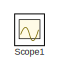
[diagram: root canvas - part 1/2, top left region]
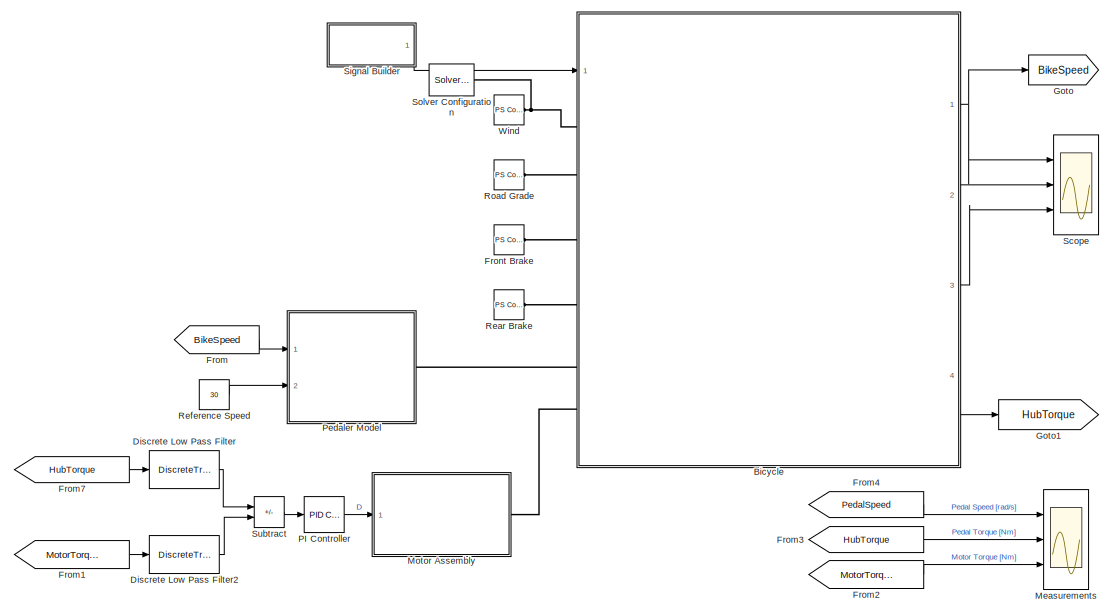
[diagram: root canvas - part 2/2, full width, bottom band]
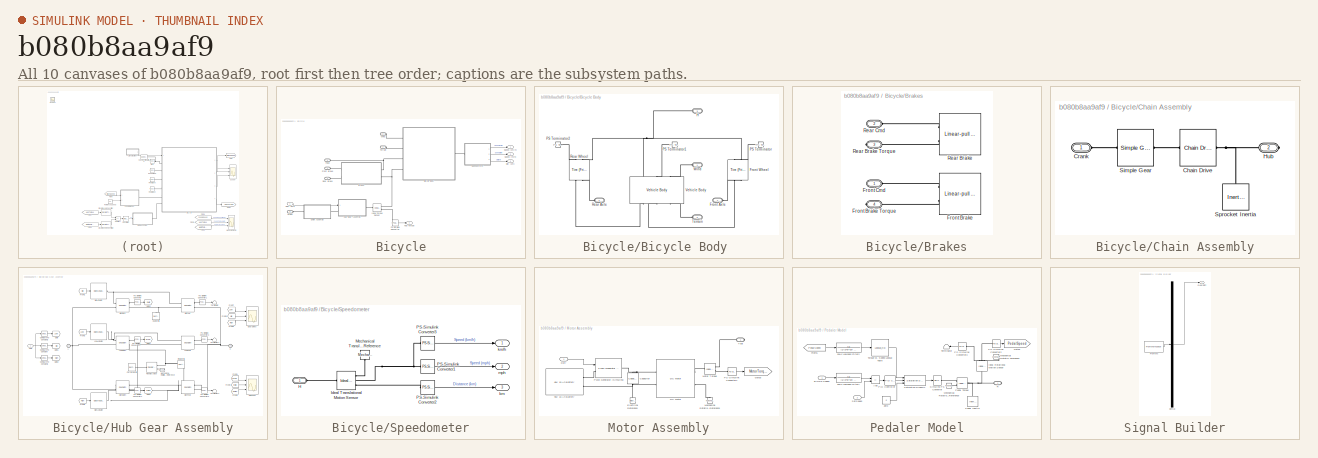
[diagram: thumbnail index - all 10 canvases of the model, root first then tree order]
MODEL slx_b080b8aa9af9
KIND model
CONFIG AbsTol = 1e-3
CONFIG EnableMultiTasking = on
CONFIG FixedStep = 1/500
CONFIG MaxStep = auto
CONFIG MinStep = auto
CONFIG PreLoadFcn = xh = 2*pi/60*[0:10:200];     % rpm to rad/s\nyh = 50*(1-exp(-(max(xh)-xh)/2));\nload bicycle_params
CONFIG RelTol = auto
CONFIG SampleTimeConstraint = Unconstrained
CONFIG SolverName = daessc
CONFIG StartTime = 0.0
CONFIG StopTime = 60
BLOCK [SubSystem] Bicycle
  Ports = [1, 4, 0, 0, 0, 6]
  RequestExecContextInheritance = off
BLOCK [SubSystem] Bicycle/Bicycle Body 
  Ports = [0, 0, 0, 0, 0, 4, 1]
  RequestExecContextInheritance = off
BLOCK [PMIOPort] Bicycle/Bicycle Body /Front Axle
  Port = 4
  Side = Left
BLOCK [Reference] Bicycle/Bicycle Body /Front Wheel  REF=sdl_lib/Tires & Vehicles/Tire (Friction
Parameterized)
  NameLocation = right
  Ports = [0, 0, 0, 0, 0, 2, 2]
  SourceBlock = sdl_lib/Tires & Vehicles/Tire (Friction\nParameterized)
  SourceProductBaseCode = LD
  SourceType = Tire (Friction\nParameterized)
BLOCK [PMIOPort] Bicycle/Bicycle Body /H
  Port = 3
  Side = Right
BLOCK [Reference] Bicycle/Bicycle Body /PS Terminator  REF=fl_lib/Physical Signals/Sinks/PS Terminator
  Ports = [0, 0, 0, 0, 0, 1]
  SourceBlock = fl_lib/Physical Signals/Sinks/PS Terminator
  SourceProductBaseCode = SS
  SourceType = PS Terminator
BLOCK [Reference] Bicycle/Bicycle Body /PS Terminator1  REF=fl_lib/Physical Signals/Sinks/PS Terminator
  Ports = [0, 0, 0, 0, 0, 1]
  SourceBlock = fl_lib/Physical Signals/Sinks/PS Terminator
  SourceProductBaseCode = SS
  SourceType = PS Terminator
BLOCK [Reference] Bicycle/Bicycle Body /PS Terminator2  REF=fl_lib/Physical Signals/Sinks/PS Terminator
  Ports = [0, 0, 0, 0, 0, 1]
  SourceBlock = fl_lib/Physical Signals/Sinks/PS Terminator
  SourceProductBaseCode = SS
  SourceType = PS Terminator
BLOCK [PMIOPort] Bicycle/Bicycle Body /Rear Axle
  Port = 5
  Side = Left
BLOCK [Reference] Bicycle/Bicycle Body /Rear Wheel  REF=sdl_lib/Tires & Vehicles/Tire (Friction
Parameterized)
  NameLocation = right
  Ports = [0, 0, 0, 0, 0, 2, 2]
  SourceBlock = sdl_lib/Tires & Vehicles/Tire (Friction\nParameterized)
  SourceProductBaseCode = LD
  SourceType = Tire (Friction\nParameterized)
BLOCK [PMIOPort] Bicycle/Bicycle Body /Terrain
  Port = 2
  Side = Left
BLOCK [Reference] Bicycle/Bicycle Body /Vehicle Body  REF=sdl_lib/Tires & Vehicles/Vehicle Body
  NameLocation = right
  Ports = [0, 0, 0, 0, 0, 3, 3]
  SourceBlock = sdl_lib/Tires & Vehicles/Vehicle Body
  SourceProductBaseCode = LD
  SourceType = Vehicle Body
BLOCK [PMIOPort] Bicycle/Bicycle Body /Wind
  Side = Left
BLOCK [SubSystem] Bicycle/Brakes
  Ports = [0, 0, 0, 0, 0, 2, 2]
  RequestExecContextInheritance = off
BLOCK [Reference] Bicycle/Brakes/Front Brake  REF=LinearBrake_lib/Linear-pull Brake
  Ports = [0, 0, 0, 0, 0, 2]
  SourceBlock = LinearBrake_lib/Linear-pull Brake
  SourceType = Linear-pull Brake
BLOCK [PMIOPort] Bicycle/Brakes/Front Brake Torque
  Port = 4
  Side = Right
BLOCK [PMIOPort] Bicycle/Brakes/Front Cmd
  Side = Left
BLOCK [Reference] Bicycle/Brakes/Rear Brake  REF=LinearBrake_lib/Linear-pull Brake
  Ports = [0, 0, 0, 0, 0, 2]
  SourceBlock = LinearBrake_lib/Linear-pull Brake
  SourceType = Linear-pull Brake
BLOCK [PMIOPort] Bicycle/Brakes/Rear Brake Torque
  Port = 3
  Side = Right
BLOCK [PMIOPort] Bicycle/Brakes/Rear Cmd
  Port = 2
  Side = Left
BLOCK [SubSystem] Bicycle/Chain Assembly
  Ports = [0, 0, 0, 0, 0, 1, 1]
  RequestExecContextInheritance = off
BLOCK [Reference] Bicycle/Chain Assembly/Chain Drive  REF=sdl_lib/Couplings & Drives/Chain Drive
  Ports = [0, 0, 0, 0, 0, 1, 1]
  SourceBlock = sdl_lib/Couplings & Drives/Chain Drive
  SourceProductBaseCode = LD
  SourceType = Chain Drive
BLOCK [PMIOPort] Bicycle/Chain Assembly/Crank
  Side = Left
BLOCK [PMIOPort] Bicycle/Chain Assembly/Hub
  Port = 2
  Side = Right
BLOCK [Reference] Bicycle/Chain Assembly/Simple Gear  REF=sdl_lib/Gears/Simple Gear
  Ports = [0, 0, 0, 0, 0, 1, 1]
  SourceBlock = sdl_lib/Gears/Simple Gear
  SourceProductBaseCode = LD
  SourceType = Simple Gear
BLOCK [Reference] Bicycle/Chain Assembly/Sprocket Inertia  REF=fl_lib/Mechanical/Rotational Elements/Inertia
  NameLocation = right
  Ports = [0, 0, 0, 0, 0, 1]
  SourceBlock = fl_lib/Mechanical/Rotational Elements/Inertia
  SourceProductBaseCode = SS
  SourceType = Inertia
BLOCK [PMIOPort] Bicycle/Crank
  Port = 5
  Side = Left
BLOCK [Outport] Bicycle/Dist (km)
  Port = 3
  VectorParamsAs1DForOutWhenUnconnected = off
BLOCK [PMIOPort] Bicycle/FHub
  Port = 6
  Side = Left
BLOCK [PMIOPort] Bicycle/Front Brake
  Port = 3
  Side = Left
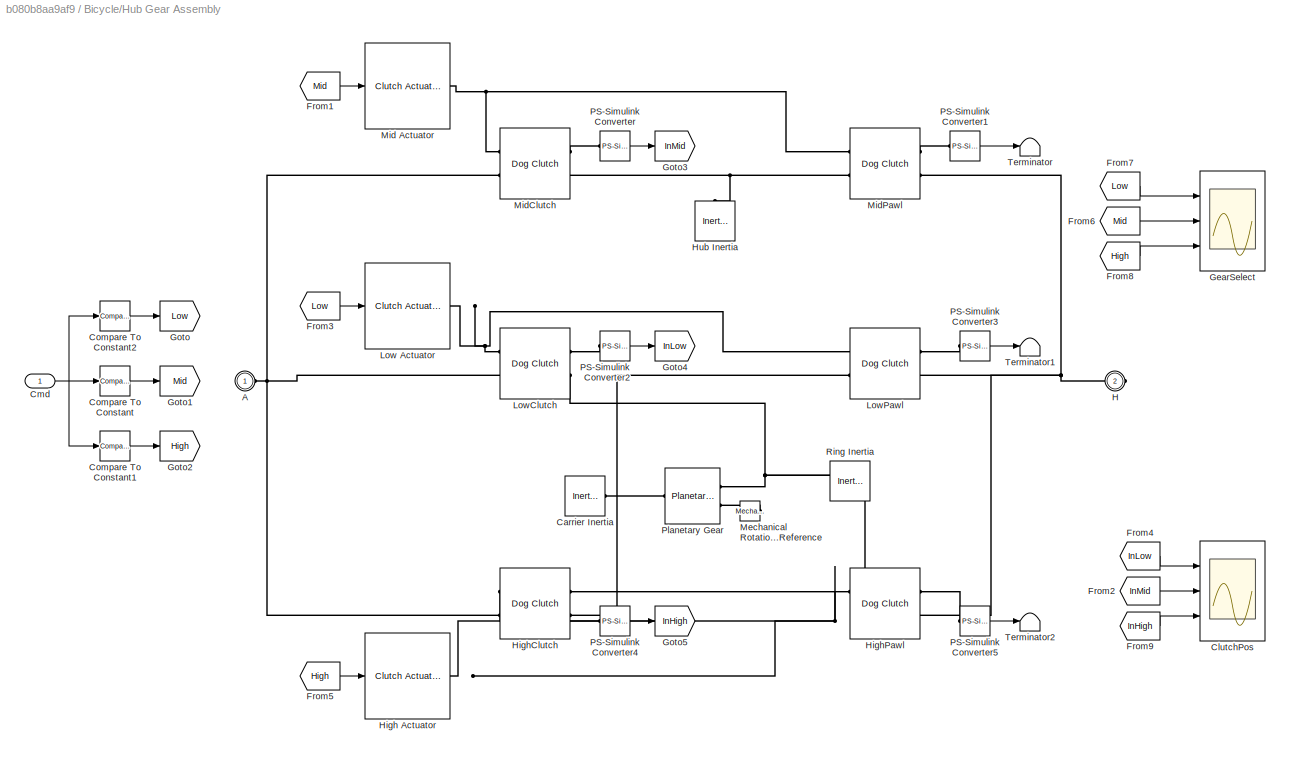
BLOCK [SubSystem] Bicycle/Hub Gear Assembly
  Ports = [1, 0, 0, 0, 0, 1, 1]
  RequestExecContextInheritance = off
BLOCK [PMIOPort] Bicycle/Hub Gear Assembly/A
  NameLocation = top
  Side = Left
BLOCK [Reference] Bicycle/Hub Gear Assembly/Carrier Inertia  REF=fl_lib/Mechanical/Rotational Elements/Inertia
  NameLocation = top
  Ports = [0, 0, 0, 0, 0, 1]
  SourceBlock = fl_lib/Mechanical/Rotational Elements/Inertia
  SourceProductBaseCode = SS
  SourceType = Inertia
BLOCK [Scope] Bicycle/Hub Gear Assembly/ClutchPos
  Floating = off
  NumInputPorts = 3
  Ports = [3]
  ScopeSpecificationString = Simulink.scopes.TimeScopeBlockCfg('CurrentConfiguration', extmgr.ConfigurationSet(extmgr.Configuration('Core','General UI',true),extmgr.Configuration('Core','Source UI',true),extmgr.Configuration('Sources','WiredSimulink',true,'DataLoggingVariableName','ScopeData2','DataLoggingSaveFormat','StructureWithTime','DataLoggingDecimation','1','DataLoggingDecimateData',true),extmgr.Configuration('Visuals'...<+3554ch>
BLOCK [Inport] Bicycle/Hub Gear Assembly/Cmd
BLOCK [Reference] Bicycle/Hub Gear Assembly/Compare To Constant  REF=simulink/Logic and Bit
Operations/Compare
To Constant
  Ports = [1, 1]
  SourceBlock = simulink/Logic and Bit\nOperations/Compare\nTo Constant
  SourceProductBaseCode = SL
  SourceType = Compare To Constant
BLOCK [Reference] Bicycle/Hub Gear Assembly/Compare To Constant1  REF=simulink/Logic and Bit
Operations/Compare
To Constant
  Ports = [1, 1]
  SourceBlock = simulink/Logic and Bit\nOperations/Compare\nTo Constant
  SourceProductBaseCode = SL
  SourceType = Compare To Constant
BLOCK [Reference] Bicycle/Hub Gear Assembly/Compare To Constant2  REF=simulink/Logic and Bit
Operations/Compare
To Constant
  Ports = [1, 1]
  SourceBlock = simulink/Logic and Bit\nOperations/Compare\nTo Constant
  SourceProductBaseCode = SL
  SourceType = Compare To Constant
BLOCK [From] Bicycle/Hub Gear Assembly/From1
  GotoTag = Mid
BLOCK [From] Bicycle/Hub Gear Assembly/From2
  GotoTag = InMid
BLOCK [From] Bicycle/Hub Gear Assembly/From3
  GotoTag = Low
BLOCK [From] Bicycle/Hub Gear Assembly/From4
  GotoTag = InLow
BLOCK [From] Bicycle/Hub Gear Assembly/From5
  GotoTag = High
BLOCK [From] Bicycle/Hub Gear Assembly/From6
  GotoTag = Mid
BLOCK [From] Bicycle/Hub Gear Assembly/From7
  GotoTag = Low
BLOCK [From] Bicycle/Hub Gear Assembly/From8
  GotoTag = High
BLOCK [From] Bicycle/Hub Gear Assembly/From9
  GotoTag = InHigh
BLOCK [Scope] Bicycle/Hub Gear Assembly/GearSelect
  Floating = off
  NumInputPorts = 3
  Ports = [3]
  ScopeSpecificationString = Simulink.scopes.TimeScopeBlockCfg('CurrentConfiguration', extmgr.ConfigurationSet(extmgr.Configuration('Core','General UI',true),extmgr.Configuration('Core','Source UI',true),extmgr.Configuration('Sources','WiredSimulink',true,'DataLoggingVariableName','ScopeData1','DataLoggingSaveFormat','StructureWithTime','DataLoggingLimitDataPoints',true,'DataLoggingDecimation','1','DataLoggingDecimateData',tr...<+3542ch>
BLOCK [Goto] Bicycle/Hub Gear Assembly/Goto
  GotoTag = Low
BLOCK [Goto] Bicycle/Hub Gear Assembly/Goto1
  GotoTag = Mid
BLOCK [Goto] Bicycle/Hub Gear Assembly/Goto2
  GotoTag = High
BLOCK [Goto] Bicycle/Hub Gear Assembly/Goto3
  GotoTag = InMid
BLOCK [Goto] Bicycle/Hub Gear Assembly/Goto4
  GotoTag = InLow
BLOCK [Goto] Bicycle/Hub Gear Assembly/Goto5
  GotoTag = InHigh
BLOCK [PMIOPort] Bicycle/Hub Gear Assembly/H
  NameLocation = top
  Port = 2
  Side = Right
BLOCK [Reference] Bicycle/Hub Gear Assembly/High Actuator  REF=clutch_lib/Clutch Actuator  (lib defined in slx_342301660542)
  Ports = [1, 0, 0, 0, 0, 0, 1]
  SourceBlock = clutch_lib/Clutch Actuator
  SourceType = SubSystem
BLOCK [Reference] Bicycle/Hub Gear Assembly/HighClutch  REF=sdl_lib/Clutches/Dog Clutch
  Ports = [0, 0, 0, 0, 0, 2, 2]
  SourceBlock = sdl_lib/Clutches/Dog Clutch
  SourceProductBaseCode = LD
  SourceType = Dog Clutch
BLOCK [Reference] Bicycle/Hub Gear Assembly/HighPawl  REF=sdl_lib/Clutches/Dog Clutch
  Ports = [0, 0, 0, 0, 0, 2, 2]
  SourceBlock = sdl_lib/Clutches/Dog Clutch
  SourceProductBaseCode = LD
  SourceType = Dog Clutch
BLOCK [Reference] Bicycle/Hub Gear Assembly/Hub Inertia  REF=fl_lib/Mechanical/Rotational Elements/Inertia
  NameLocation = right
  Ports = [0, 0, 0, 0, 0, 1]
  SourceBlock = fl_lib/Mechanical/Rotational Elements/Inertia
  SourceProductBaseCode = SS
  SourceType = Inertia
BLOCK [Reference] Bicycle/Hub Gear Assembly/Low Actuator  REF=clutch_lib/Clutch Actuator  (lib defined in slx_342301660542)
  Ports = [1, 0, 0, 0, 0, 0, 1]
  SourceBlock = clutch_lib/Clutch Actuator
  SourceType = SubSystem
BLOCK [Reference] Bicycle/Hub Gear Assembly/LowClutch  REF=sdl_lib/Clutches/Dog Clutch
  Ports = [0, 0, 0, 0, 0, 2, 2]
  SourceBlock = sdl_lib/Clutches/Dog Clutch
  SourceProductBaseCode = LD
  SourceType = Dog Clutch
BLOCK [Reference] Bicycle/Hub Gear Assembly/LowPawl  REF=sdl_lib/Clutches/Dog Clutch
  Ports = [0, 0, 0, 0, 0, 2, 2]
  SourceBlock = sdl_lib/Clutches/Dog Clutch
  SourceProductBaseCode = LD
  SourceType = Dog Clutch
BLOCK [Reference] Bicycle/Hub Gear Assembly/Mechanical Rotational Reference  REF=fl_lib/Mechanical/Rotational Elements/Mechanical
Rotational Reference
  NameLocation = top
  Ports = [0, 0, 0, 0, 0, 1]
  SourceBlock = fl_lib/Mechanical/Rotational Elements/Mechanical\nRotational Reference
  SourceProductBaseCode = SS
  SourceType = Mechanical\nRotational Reference
BLOCK [Reference] Bicycle/Hub Gear Assembly/Mid Actuator  REF=clutch_lib/Clutch Actuator  (lib defined in slx_342301660542)
  Ports = [1, 0, 0, 0, 0, 0, 1]
  SourceBlock = clutch_lib/Clutch Actuator
  SourceType = SubSystem
BLOCK [Reference] Bicycle/Hub Gear Assembly/MidClutch  REF=sdl_lib/Clutches/Dog Clutch
  Ports = [0, 0, 0, 0, 0, 2, 2]
  SourceBlock = sdl_lib/Clutches/Dog Clutch
  SourceProductBaseCode = LD
  SourceType = Dog Clutch
BLOCK [Reference] Bicycle/Hub Gear Assembly/MidPawl  REF=sdl_lib/Clutches/Dog Clutch
  Ports = [0, 0, 0, 0, 0, 2, 2]
  SourceBlock = sdl_lib/Clutches/Dog Clutch
  SourceProductBaseCode = LD
  SourceType = Dog Clutch
BLOCK [Reference] Bicycle/Hub Gear Assembly/PS-Simulink Converter  REF=nesl_utility/PS-Simulink
Converter
  Ports = [0, 1, 0, 0, 0, 1]
  SourceBlock = nesl_utility/PS-Simulink\nConverter
  SourceProductBaseCode = SS
  SourceType = PS-Simulink\nConverter
BLOCK [Reference] Bicycle/Hub Gear Assembly/PS-Simulink Converter1  REF=nesl_utility/PS-Simulink
Converter
  Ports = [0, 1, 0, 0, 0, 1]
  SourceBlock = nesl_utility/PS-Simulink\nConverter
  SourceProductBaseCode = SS
  SourceType = PS-Simulink\nConverter
BLOCK [Reference] Bicycle/Hub Gear Assembly/PS-Simulink Converter2  REF=nesl_utility/PS-Simulink
Converter
  Ports = [0, 1, 0, 0, 0, 1]
  SourceBlock = nesl_utility/PS-Simulink\nConverter
  SourceProductBaseCode = SS
  SourceType = PS-Simulink\nConverter
BLOCK [Reference] Bicycle/Hub Gear Assembly/PS-Simulink Converter3  REF=nesl_utility/PS-Simulink
Converter
  Ports = [0, 1, 0, 0, 0, 1]
  SourceBlock = nesl_utility/PS-Simulink\nConverter
  SourceProductBaseCode = SS
  SourceType = PS-Simulink\nConverter
BLOCK [Reference] Bicycle/Hub Gear Assembly/PS-Simulink Converter4  REF=nesl_utility/PS-Simulink
Converter
  Ports = [0, 1, 0, 0, 0, 1]
  SourceBlock = nesl_utility/PS-Simulink\nConverter
  SourceProductBaseCode = SS
  SourceType = PS-Simulink\nConverter
BLOCK [Reference] Bicycle/Hub Gear Assembly/PS-Simulink Converter5  REF=nesl_utility/PS-Simulink
Converter
  Ports = [0, 1, 0, 0, 0, 1]
  SourceBlock = nesl_utility/PS-Simulink\nConverter
  SourceProductBaseCode = SS
  SourceType = PS-Simulink\nConverter
BLOCK [Reference] Bicycle/Hub Gear Assembly/Planetary Gear  REF=sdl_lib/Gears/Planetary Gear
  NameLocation = top
  Ports = [0, 0, 0, 0, 0, 1, 2]
  SourceBlock = sdl_lib/Gears/Planetary Gear
  SourceProductBaseCode = LD
  SourceType = Planetary Gear
BLOCK [Reference] Bicycle/Hub Gear Assembly/Ring Inertia  REF=fl_lib/Mechanical/Rotational Elements/Inertia
  NameLocation = top
  Ports = [0, 0, 0, 0, 0, 1]
  SourceBlock = fl_lib/Mechanical/Rotational Elements/Inertia
  SourceProductBaseCode = SS
  SourceType = Inertia
BLOCK [Terminator] Bicycle/Hub Gear Assembly/Terminator
BLOCK [Terminator] Bicycle/Hub Gear Assembly/Terminator1
BLOCK [Terminator] Bicycle/Hub Gear Assembly/Terminator2
BLOCK [Outport] Bicycle/Hub Torque
  Port = 4
  VectorParamsAs1DForOutWhenUnconnected = off
BLOCK [Reference] Bicycle/Ideal Torque Sensor  REF=fl_lib/Mechanical/Mechanical Sensors/Ideal Torque Sensor
  Ports = [0, 0, 0, 0, 0, 1, 2]
  SourceBlock = fl_lib/Mechanical/Mechanical Sensors/Ideal Torque Sensor
  SourceProductBaseCode = SS
  SourceType = Ideal Torque Sensor
BLOCK [Reference] Bicycle/PS-Simulink Converter  REF=nesl_utility/PS-Simulink
Converter
  Ports = [0, 1, 0, 0, 0, 1]
  SourceBlock = nesl_utility/PS-Simulink\nConverter
  SourceProductBaseCode = SS
  SourceType = PS-Simulink\nConverter
BLOCK [PMIOPort] Bicycle/Rear Brake
  Port = 4
  Side = Left
BLOCK [Inport] Bicycle/Shift Cmd
BLOCK [Outport] Bicycle/Speed (km//h)
  VectorParamsAs1DForOutWhenUnconnected = off
BLOCK [Outport] Bicycle/Speed (mi//h)
  Port = 2
  VectorParamsAs1DForOutWhenUnconnected = off
BLOCK [SubSystem] Bicycle/Speedometer
  Ports = [0, 3, 0, 0, 0, 1]
  RequestExecContextInheritance = off
BLOCK [PMIOPort] Bicycle/Speedometer/H
  Side = Left
BLOCK [Reference] Bicycle/Speedometer/Ideal Translational Motion Sensor  REF=fl_lib/Mechanical/Mechanical Sensors/Ideal Translational
Motion Sensor
  Ports = [0, 0, 0, 0, 0, 1, 3]
  SourceBlock = fl_lib/Mechanical/Mechanical Sensors/Ideal Translational\nMotion Sensor
  SourceProductBaseCode = SS
  SourceType = Ideal Translational\nMotion Sensor
BLOCK [Reference] Bicycle/Speedometer/Mechanical Translational Reference  REF=fl_lib/Mechanical/Translational
Elements/Mechanical
Translational
Reference
  NameLocation = left
  Ports = [0, 0, 0, 0, 0, 1]
  SourceBlock = fl_lib/Mechanical/Translational\nElements/Mechanical\nTranslational\nReference
  SourceProductBaseCode = SS
  SourceType = Mechanical\nTranslational\nReference
BLOCK [Reference] Bicycle/Speedometer/PS-Simulink Converter1  REF=nesl_utility/PS-Simulink
Converter
  Ports = [0, 1, 0, 0, 0, 1]
  SourceBlock = nesl_utility/PS-Simulink\nConverter
  SourceProductBaseCode = SS
  SourceType = PS-Simulink\nConverter
BLOCK [Reference] Bicycle/Speedometer/PS-Simulink Converter2  REF=nesl_utility/PS-Simulink
Converter
  Ports = [0, 1, 0, 0, 0, 1]
  SourceBlock = nesl_utility/PS-Simulink\nConverter
  SourceProductBaseCode = SS
  SourceType = PS-Simulink\nConverter
BLOCK [Reference] Bicycle/Speedometer/PS-Simulink Converter3  REF=nesl_utility/PS-Simulink
Converter
  Ports = [0, 1, 0, 0, 0, 1]
  SourceBlock = nesl_utility/PS-Simulink\nConverter
  SourceProductBaseCode = SS
  SourceType = PS-Simulink\nConverter
BLOCK [Outport] Bicycle/Speedometer/km
  Port = 3
  VectorParamsAs1DForOutWhenUnconnected = off
BLOCK [Outport] Bicycle/Speedometer/km//h
  VectorParamsAs1DForOutWhenUnconnected = off
BLOCK [Outport] Bicycle/Speedometer/mph
  Port = 2
  VectorParamsAs1DForOutWhenUnconnected = off
BLOCK [PMIOPort] Bicycle/Terrain
  Port = 2
  Side = Left
BLOCK [PMIOPort] Bicycle/Wind
  Side = Left
BLOCK [DiscreteTransferFcn] Discrete Low Pass Filter
  Denominator = [1 -0.00186744]
  InputPortMap = u0
  Numerator = [0.9981326]
  Ports = [1, 1]
  SampleTime = 0.05
BLOCK [DiscreteTransferFcn] Discrete Low Pass Filter2
  Denominator = [1 -0.00186744]
  InputPortMap = u0
  Numerator = [0.9981326]
  Ports = [1, 1]
  SampleTime = 0.05
BLOCK [From] From
  GotoTag = BikeSpeed
BLOCK [From] From1
  GotoTag = MotorTorque
  TagVisibility = global
BLOCK [From] From2
  GotoTag = MotorTorque
  TagVisibility = global
BLOCK [From] From3
  GotoTag = HubTorque
BLOCK [From] From4
  GotoTag = PedalSpeed
  TagVisibility = global
BLOCK [From] From7
  GotoTag = HubTorque
BLOCK [Reference] Front Brake  REF=fl_lib/Physical Signals/Sources/PS Constant
  Ports = [0, 0, 0, 0, 0, 0, 1]
  SourceBlock = fl_lib/Physical Signals/Sources/PS Constant
  SourceProductBaseCode = SS
  SourceType = PS Constant
BLOCK [Goto] Goto
  GotoTag = BikeSpeed
BLOCK [Goto] Goto1
  GotoTag = HubTorque
BLOCK [Scope] Measurements
  Floating = off
  NumInputPorts = 3
  Ports = [3]
  ScopeSpecificationString = Simulink.scopes.TimeScopeBlockCfg('CurrentConfiguration', extmgr.ConfigurationSet(extmgr.Configuration('Core','General UI',true),extmgr.Configuration('Core','Source UI',true),extmgr.Configuration('Sources','WiredSimulink',true,'DataLoggingVariableName','ScopeData1','DataLoggingSaveFormat','StructureWithTime','DataLoggingDecimation','1','DataLoggingDecimateData',true),extmgr.Configuration('Visuals'...<+3617ch>
BLOCK [SubSystem] Motor Assembly
  Ports = [1, 0, 0, 0, 0, 0, 1]
  RequestExecContextInheritance = off
BLOCK [Reference] Motor Assembly/48V 13 Ah Battery  REF=motor_lib/48V 13 Ah Battery  (lib defined in slx_df34e2925419)
  Ports = [0, 0, 0, 0, 0, 0, 2]
  SourceBlock = motor_lib/48V 13 Ah Battery
BLOCK [Reference] Motor Assembly/Capacitor  REF=fl_lib/Electrical/Electrical Elements/Capacitor
  NameLocation = right
  Ports = [0, 0, 0, 0, 0, 1, 1]
  SourceBlock = fl_lib/Electrical/Electrical Elements/Capacitor
  SourceProductBaseCode = SS
  SourceType = Capacitor
BLOCK [Reference] Motor Assembly/DC Motor  REF=motor_lib/DC Motor  (lib defined in slx_df34e2925419)
  Ports = [0, 0, 0, 0, 0, 2, 2]
  SourceBlock = motor_lib/DC Motor
BLOCK [Inport] Motor Assembly/Duty
BLOCK [Reference] Motor Assembly/Electrical Reference  REF=fl_lib/Electrical/Electrical Elements/Electrical Reference
  NameLocation = right
  Ports = [0, 0, 0, 0, 0, 1]
  SourceBlock = fl_lib/Electrical/Electrical Elements/Electrical Reference
  SourceProductBaseCode = SS
  SourceType = Electrical Reference
BLOCK [Goto] Motor Assembly/Goto3
  GotoTag = MotorTorque
  TagVisibility = global
BLOCK [Reference] Motor Assembly/Mechanical Rotational Reference  REF=fl_lib/Mechanical/Rotational Elements/Mechanical
Rotational Reference
  NameLocation = right
  Ports = [0, 0, 0, 0, 0, 1]
  SourceBlock = fl_lib/Mechanical/Rotational Elements/Mechanical\nRotational Reference
  SourceProductBaseCode = SS
  SourceType = Mechanical\nRotational Reference
BLOCK [Reference] Motor Assembly/Motor Torque  REF=fl_lib/Mechanical/Mechanical Sensors/Ideal Torque Sensor
  Ports = [0, 0, 0, 0, 0, 1, 2]
  SourceBlock = fl_lib/Mechanical/Mechanical Sensors/Ideal Torque Sensor
  SourceProductBaseCode = SS
  SourceType = Ideal Torque Sensor
BLOCK [Reference] Motor Assembly/PS-Simulink Converter1  REF=nesl_utility/PS-Simulink
Converter
  NameLocation = top
  Ports = [0, 1, 0, 0, 0, 1]
  SourceBlock = nesl_utility/PS-Simulink\nConverter
  SourceProductBaseCode = SS
  SourceType = PS-Simulink\nConverter
BLOCK [Reference] Motor Assembly/PWM Generator (Simulink)  REF=motor_lib/PWM Generator   (lib defined in slx_df34e2925419)
(Simulink)
  Ports = [1, 0, 0, 0, 0, 1, 1]
  SourceBlock = motor_lib/PWM Generator \n(Simulink)
  SourceType = PWM Generator
BLOCK [PMIOPort] Motor Assembly/Tout
  Side = Right
BLOCK [Reference] PI Controller  REF=pid_lib/PID Controller
  Ports = [1, 1]
  SourceBlock = pid_lib/PID Controller
  SourceProductBaseCode = SL
  SourceType = PID 1dof
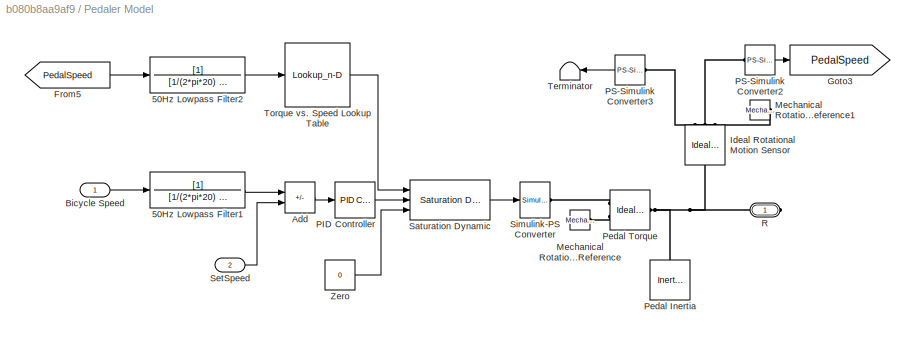
BLOCK [SubSystem] Pedaler Model
  Ports = [2, 0, 0, 0, 0, 0, 1]
  RequestExecContextInheritance = off
BLOCK [TransferFcn] Pedaler Model/50Hz Lowpass Filter1
  Denominator = [1/(2*pi*20) 1]
  NameLocation = top
BLOCK [TransferFcn] Pedaler Model/50Hz Lowpass Filter2
  Denominator = [1/(2*pi*20) 1]
  NameLocation = top
BLOCK [Sum] Pedaler Model/Add
  IconShape = rectangular
  Inputs = -+
  Ports = [2, 1]
BLOCK [Inport] Pedaler Model/Bicycle Speed
BLOCK [From] Pedaler Model/From5
  GotoTag = PedalSpeed
  TagVisibility = global
BLOCK [Goto] Pedaler Model/Goto3
  GotoTag = PedalSpeed
  TagVisibility = global
BLOCK [Reference] Pedaler Model/Ideal Rotational Motion Sensor  REF=fl_lib/Mechanical/Mechanical Sensors/Ideal Rotational
Motion Sensor
  NameLocation = right
  Ports = [0, 0, 0, 0, 0, 1, 3]
  SourceBlock = fl_lib/Mechanical/Mechanical Sensors/Ideal Rotational\nMotion Sensor
  SourceProductBaseCode = SS
  SourceType = Ideal Rotational\nMotion Sensor
BLOCK [Reference] Pedaler Model/Mechanical Rotational Reference  REF=fl_lib/Mechanical/Rotational Elements/Mechanical
Rotational Reference
  Ports = [0, 0, 0, 0, 0, 1]
  SourceBlock = fl_lib/Mechanical/Rotational Elements/Mechanical\nRotational Reference
  SourceProductBaseCode = SS
  SourceType = Mechanical\nRotational Reference
BLOCK [Reference] Pedaler Model/Mechanical Rotational Reference1  REF=fl_lib/Mechanical/Rotational Elements/Mechanical
Rotational Reference
  NameLocation = top
  Ports = [0, 0, 0, 0, 0, 1]
  SourceBlock = fl_lib/Mechanical/Rotational Elements/Mechanical\nRotational Reference
  SourceProductBaseCode = SS
  SourceType = Mechanical\nRotational Reference
BLOCK [Reference] Pedaler Model/PID Controller  REF=pid_lib/PID Controller
  Ports = [1, 1]
  SourceBlock = pid_lib/PID Controller
  SourceProductBaseCode = SL
  SourceType = PID 1dof
BLOCK [Reference] Pedaler Model/PS-Simulink Converter2  REF=nesl_utility/PS-Simulink
Converter
  Ports = [0, 1, 0, 0, 0, 1]
  SourceBlock = nesl_utility/PS-Simulink\nConverter
  SourceProductBaseCode = SS
  SourceType = PS-Simulink\nConverter
BLOCK [Reference] Pedaler Model/PS-Simulink Converter3  REF=nesl_utility/PS-Simulink
Converter
  NameLocation = top
  Ports = [0, 1, 0, 0, 0, 1]
  SourceBlock = nesl_utility/PS-Simulink\nConverter
  SourceProductBaseCode = SS
  SourceType = PS-Simulink\nConverter
BLOCK [Reference] Pedaler Model/Pedal Inertia  REF=fl_lib/Mechanical/Rotational Elements/Inertia
  NameLocation = right
  Ports = [0, 0, 0, 0, 0, 1]
  SourceBlock = fl_lib/Mechanical/Rotational Elements/Inertia
  SourceProductBaseCode = SS
  SourceType = Inertia
BLOCK [Reference] Pedaler Model/Pedal Torque  REF=fl_lib/Mechanical/Mechanical Sources/Ideal Torque Source
  Ports = [0, 0, 0, 0, 0, 1, 2]
  SourceBlock = fl_lib/Mechanical/Mechanical Sources/Ideal Torque Source
  SourceProductBaseCode = SS
  SourceType = Ideal Torque Source
BLOCK [PMIOPort] Pedaler Model/R
  NameLocation = top
  Side = Right
BLOCK [Reference] Pedaler Model/Saturation Dynamic  REF=simulink/Discontinuities/Saturation
Dynamic
  Ports = [3, 1]
  SourceBlock = simulink/Discontinuities/Saturation\nDynamic
  SourceProductBaseCode = SL
  SourceType = Saturation Dynamic
BLOCK [Inport] Pedaler Model/SetSpeed
  Port = 2
BLOCK [Reference] Pedaler Model/Simulink-PS Converter  REF=nesl_utility/Simulink-PS
Converter
  Ports = [1, 0, 0, 0, 0, 0, 1]
  SourceBlock = nesl_utility/Simulink-PS\nConverter
  SourceProductBaseCode = SS
  SourceType = Simulink-PS\nConverter
BLOCK [Terminator] Pedaler Model/Terminator
  NameLocation = top
BLOCK [Lookup_n-D] Pedaler Model/Torque vs. Speed Lookup Table
  BreakpointsForDimension1 = xh
  ExtrapMethod = Clip
  InputPortMap = u0
  NumberOfTableDimensions = 1
  Ports = [1, 1]
  RndMeth = Simplest
  Table = yh
BLOCK [Constant] Pedaler Model/Zero
  Value = 0
BLOCK [Reference] Rear Brake  REF=fl_lib/Physical Signals/Sources/PS Constant
  Ports = [0, 0, 0, 0, 0, 0, 1]
  SourceBlock = fl_lib/Physical Signals/Sources/PS Constant
  SourceProductBaseCode = SS
  SourceType = PS Constant
BLOCK [Constant] Reference Speed
  Value = 30
BLOCK [Reference] Road Grade  REF=fl_lib/Physical Signals/Sources/PS Constant
  Ports = [0, 0, 0, 0, 0, 0, 1]
  SourceBlock = fl_lib/Physical Signals/Sources/PS Constant
  SourceProductBaseCode = SS
  SourceType = PS Constant
BLOCK [Scope] Scope
  Floating = off
  NumInputPorts = 3
  Ports = [3]
  ScopeSpecificationString = Simulink.scopes.TimeScopeBlockCfg('CurrentConfiguration', extmgr.ConfigurationSet(extmgr.Configuration('Core','General UI',true),extmgr.Configuration('Core','Source UI',true),extmgr.Configuration('Sources','WiredSimulink',true,'DataLoggingSaveFormat','StructureWithTime','DataLoggingDecimation','1','DataLoggingDecimateData',true),extmgr.Configuration('Visuals','Time Domain',true,'SerializedDisplays...<+3512ch>
BLOCK [Scope] Scope1
  Floating = off
  IOType = viewer
  NumInputPorts = 1
  Ports = []
  ScopeSpecificationString = Simulink.scopes.TimeScopeBlockCfg('CurrentConfiguration', extmgr.ConfigurationSet(extmgr.Configuration('Core','General UI',true),extmgr.Configuration('Core','Source UI',true),extmgr.Configuration('Sources','WiredSimulink',true,'DataLoggingVariableName','ScopeData1'),extmgr.Configuration('Visuals','Time Domain',true,'SerializedDisplays',{struct('MinYLimReal','-1.00000','MaxYLimReal','1.00000','YLab...<+1589ch>
BLOCK [SubSystem] Signal Builder
  ClipboardFcn = sigbuilder_block('clipboard');
  CloseFcn = sigbuilder_block('close');
  ContinueFcn = sigbuilder_block('continue');
  CopyFcn = sigbuilder_block('copy');
  DeleteFcn = sigbuilder_block('delete');
  LoadFcn = sigbuilder_block('load');
  MaskHideContents = on
  ModelCloseFcn = sigbuilder_block('modelClose');
  NameChangeFcn = sigbuilder_block('namechange');
  NameLocation = top
  OpenFcn = sigbuilder_block('open',[306 225.6 549.6 399.6 ]);
  PauseFcn = sigbuilder_block('pause');
  Ports = [0, 1]
  PreSaveFcn = sigbuilder_block('preSave');
  RequestExecContextInheritance = off
  StartFcn = sigbuilder_block('start');
  StopFcn = sigbuilder_block('stop');
  Tag = STV Subsys
BLOCK [Demux] Signal Builder/Demux
  DisplayOption = none
  Outputs = 1
  Ports = [1, 1]
  Tag = STV Demux
BLOCK [FromWorkspace] Signal Builder/FromWs
  Tag = STV FromWs
  VariableName = tuvar
BLOCK [Outport] Signal Builder/GearShift
  Tag = STV Outport
  VectorParamsAs1DForOutWhenUnconnected = off
BLOCK [Reference] Solver Configuration  REF=nesl_utility/Solver
Configuration
  Ports = [0, 0, 0, 0, 0, 0, 1]
  SourceBlock = nesl_utility/Solver\nConfiguration
  SourceProductBaseCode = SS
  SourceType = Solver\nConfiguration
BLOCK [Sum] Subtract
  IconShape = rectangular
  Inputs = +-
  Ports = [2, 1]
BLOCK [Reference] Wind  REF=fl_lib/Physical Signals/Sources/PS Constant
  Ports = [0, 0, 0, 0, 0, 0, 1]
  SourceBlock = fl_lib/Physical Signals/Sources/PS Constant
  SourceProductBaseCode = SS
  SourceType = PS Constant
NET Bicycle/Hub Gear Assembly/Cmd:1 -> Bicycle/Hub Gear Assembly/Compare To Constant1:1, Bicycle/Hub Gear Assembly/Compare To Constant2:1, Bicycle/Hub Gear Assembly/Compare To Constant:1
LINE Bicycle/Hub Gear Assembly/Compare To Constant1:1 -> Bicycle/Hub Gear Assembly/Goto2:1
LINE Bicycle/Hub Gear Assembly/Compare To Constant2:1 -> Bicycle/Hub Gear Assembly/Goto:1
LINE Bicycle/Hub Gear Assembly/Compare To Constant:1 -> Bicycle/Hub Gear Assembly/Goto1:1
LINE Bicycle/Hub Gear Assembly/From1:1 -> Bicycle/Hub Gear Assembly/Mid Actuator:1
LINE Bicycle/Hub Gear Assembly/From2:1 -> Bicycle/Hub Gear Assembly/ClutchPos:2
LINE Bicycle/Hub Gear Assembly/From3:1 -> Bicycle/Hub Gear Assembly/Low Actuator:1
LINE Bicycle/Hub Gear Assembly/From4:1 -> Bicycle/Hub Gear Assembly/ClutchPos:1
LINE Bicycle/Hub Gear Assembly/From5:1 -> Bicycle/Hub Gear Assembly/High Actuator:1
LINE Bicycle/Hub Gear Assembly/From6:1 -> Bicycle/Hub Gear Assembly/GearSelect:2
LINE Bicycle/Hub Gear Assembly/From7:1 -> Bicycle/Hub Gear Assembly/GearSelect:1
LINE Bicycle/Hub Gear Assembly/From8:1 -> Bicycle/Hub Gear Assembly/GearSelect:3
LINE Bicycle/Hub Gear Assembly/From9:1 -> Bicycle/Hub Gear Assembly/ClutchPos:3
LINE Bicycle/Hub Gear Assembly/PS-Simulink Converter1:1 -> Bicycle/Hub Gear Assembly/Terminator:1
LINE Bicycle/Hub Gear Assembly/PS-Simulink Converter2:1 -> Bicycle/Hub Gear Assembly/Goto4:1
LINE Bicycle/Hub Gear Assembly/PS-Simulink Converter3:1 -> Bicycle/Hub Gear Assembly/Terminator1:1
LINE Bicycle/Hub Gear Assembly/PS-Simulink Converter4:1 -> Bicycle/Hub Gear Assembly/Goto5:1
LINE Bicycle/Hub Gear Assembly/PS-Simulink Converter5:1 -> Bicycle/Hub Gear Assembly/Terminator2:1
LINE Bicycle/Hub Gear Assembly/PS-Simulink Converter:1 -> Bicycle/Hub Gear Assembly/Goto3:1
LINE Bicycle/PS-Simulink Converter:1 -> Bicycle/Hub Torque:1
LINE Bicycle/Shift Cmd:1 -> Bicycle/Hub Gear Assembly:1
LINE Bicycle/Speedometer/PS-Simulink Converter1:1 -> Bicycle/Speedometer/mph:1
LINE Bicycle/Speedometer/PS-Simulink Converter2:1 -> Bicycle/Speedometer/km:1
LINE Bicycle/Speedometer/PS-Simulink Converter3:1 -> Bicycle/Speedometer/km//h:1
LINE Bicycle/Speedometer:1 -> Bicycle/Speed (km//h):1
LINE Bicycle/Speedometer:2 -> Bicycle/Speed (mi//h):1
LINE Bicycle/Speedometer:3 -> Bicycle/Dist (km):1
NET Bicycle:1 -> Goto:1, Scope:1
LINE Bicycle:2 -> Scope:2
LINE Bicycle:3 -> Scope:3
LINE Bicycle:4 -> Goto1:1
LINE Discrete Low Pass Filter2:1 -> Subtract:2
LINE Discrete Low Pass Filter:1 -> Subtract:1
LINE From1:1 -> Discrete Low Pass Filter2:1
LINE From2:1 -> Measurements:3
LINE From3:1 -> Measurements:2
LINE From4:1 -> Measurements:1
LINE From7:1 -> Discrete Low Pass Filter:1
LINE From:1 -> Pedaler Model:1
LINE Motor Assembly/Duty:1 -> Motor Assembly/PWM Generator (Simulink):1
LINE Motor Assembly/PS-Simulink Converter1:1 -> Motor Assembly/Goto3:1
LINE PI Controller:1 -> Motor Assembly:1
LINE Pedaler Model/50Hz Lowpass Filter1:1 -> Pedaler Model/Add:1
LINE Pedaler Model/50Hz Lowpass Filter2:1 -> Pedaler Model/Torque vs. Speed Lookup Table:1
LINE Pedaler Model/Add:1 -> Pedaler Model/PID Controller:1
LINE Pedaler Model/Bicycle Speed:1 -> Pedaler Model/50Hz Lowpass Filter1:1
LINE Pedaler Model/From5:1 -> Pedaler Model/50Hz Lowpass Filter2:1
LINE Pedaler Model/PID Controller:1 -> Pedaler Model/Saturation Dynamic:2
LINE Pedaler Model/PS-Simulink Converter2:1 -> Pedaler Model/Goto3:1
LINE Pedaler Model/PS-Simulink Converter3:1 -> Pedaler Model/Terminator:1
LINE Pedaler Model/Saturation Dynamic:1 -> Pedaler Model/Simulink-PS Converter:1
LINE Pedaler Model/SetSpeed:1 -> Pedaler Model/Add:2
LINE Pedaler Model/Torque vs. Speed Lookup Table:1 -> Pedaler Model/Saturation Dynamic:1
LINE Pedaler Model/Zero:1 -> Pedaler Model/Saturation Dynamic:3
LINE Reference Speed:1 -> Pedaler Model:2
LINE Signal Builder:1 -> Bicycle:1
LINE Subtract:1 -> PI Controller:1
PLINE Bicycle/Bicycle Body /Front Axle:RConn1 -- Bicycle/Bicycle Body /Front Wheel:LConn2
PLINE Bicycle/Bicycle Body /Front Wheel:LConn1 -- Bicycle/Bicycle Body /Vehicle Body:RConn2
PLINE Bicycle/Bicycle Body /Front Wheel:RConn1 -- Bicycle/Bicycle Body /PS Terminator:LConn1
PNET net1: Bicycle/Bicycle Body /Front Wheel:RConn2 -- Bicycle/Bicycle Body /H:RConn1 -- Bicycle/Bicycle Body /Rear Wheel:RConn2 -- Bicycle/Bicycle Body /Vehicle Body:LConn1
PLINE Bicycle/Bicycle Body /PS Terminator1:LConn1 -- Bicycle/Bicycle Body /Vehicle Body:LConn2
PLINE Bicycle/Bicycle Body /PS Terminator2:LConn1 -- Bicycle/Bicycle Body /Rear Wheel:RConn1
PLINE Bicycle/Bicycle Body /Rear Axle:RConn1 -- Bicycle/Bicycle Body /Rear Wheel:LConn2
PLINE Bicycle/Bicycle Body /Rear Wheel:LConn1 -- Bicycle/Bicycle Body /Vehicle Body:RConn1
PLINE Bicycle/Bicycle Body /Terrain:RConn1 -- Bicycle/Bicycle Body /Vehicle Body:RConn3
PLINE Bicycle/Bicycle Body /Vehicle Body:LConn3 -- Bicycle/Bicycle Body /Wind:RConn1
PLINE Bicycle/Bicycle Body :LConn1 -- Bicycle/Wind:RConn1
PLINE Bicycle/Bicycle Body :LConn2 -- Bicycle/Terrain:RConn1
PNET net2: Bicycle/Bicycle Body :LConn3 -- Bicycle/Brakes:RConn1 -- Bicycle/FHub:RConn1
PNET net3: Bicycle/Bicycle Body :LConn4 -- Bicycle/Brakes:RConn2 -- Bicycle/Ideal Torque Sensor:RConn1
PLINE Bicycle/Bicycle Body :RConn1 -- Bicycle/Speedometer:LConn1
PLINE Bicycle/Brakes/Front Brake Torque:RConn1 -- Bicycle/Brakes/Front Brake:LConn2
PLINE Bicycle/Brakes/Front Brake:LConn1 -- Bicycle/Brakes/Front Cmd:RConn1
PLINE Bicycle/Brakes/Rear Brake Torque:RConn1 -- Bicycle/Brakes/Rear Brake:LConn2
PLINE Bicycle/Brakes/Rear Brake:LConn1 -- Bicycle/Brakes/Rear Cmd:RConn1
PLINE Bicycle/Brakes:LConn1 -- Bicycle/Front Brake:RConn1
PLINE Bicycle/Brakes:LConn2 -- Bicycle/Rear Brake:RConn1
PLINE Bicycle/Chain Assembly/Chain Drive:LConn1 -- Bicycle/Chain Assembly/Simple Gear:RConn1
PNET net4: Bicycle/Chain Assembly/Chain Drive:RConn1 -- Bicycle/Chain Assembly/Hub:RConn1 -- Bicycle/Chain Assembly/Sprocket Inertia:LConn1
PLINE Bicycle/Chain Assembly/Crank:RConn1 -- Bicycle/Chain Assembly/Simple Gear:LConn1
PLINE Bicycle/Chain Assembly:LConn1 -- Bicycle/Crank:RConn1
PLINE Bicycle/Chain Assembly:RConn1 -- Bicycle/Hub Gear Assembly:LConn1
PNET net5: Bicycle/Hub Gear Assembly/A:RConn1 -- Bicycle/Hub Gear Assembly/HighClutch:LConn2 -- Bicycle/Hub Gear Assembly/LowClutch:LConn2 -- Bicycle/Hub Gear Assembly/MidClutch:LConn2
PNET net6: Bicycle/Hub Gear Assembly/Carrier Inertia:LConn1 -- Bicycle/Hub Gear Assembly/HighClutch:RConn2 -- Bicycle/Hub Gear Assembly/LowPawl:LConn2 -- Bicycle/Hub Gear Assembly/Planetary Gear:LConn1
PNET net7: Bicycle/Hub Gear Assembly/H:RConn1 -- Bicycle/Hub Gear Assembly/HighPawl:RConn2 -- Bicycle/Hub Gear Assembly/LowPawl:RConn2 -- Bicycle/Hub Gear Assembly/MidPawl:RConn2
PNET net8: Bicycle/Hub Gear Assembly/High Actuator:RConn1 -- Bicycle/Hub Gear Assembly/HighClutch:LConn1 -- Bicycle/Hub Gear Assembly/HighPawl:LConn1
PLINE Bicycle/Hub Gear Assembly/HighClutch:RConn1 -- Bicycle/Hub Gear Assembly/PS-Simulink Converter4:LConn1
PNET net9: Bicycle/Hub Gear Assembly/HighPawl:LConn2 -- Bicycle/Hub Gear Assembly/LowClutch:RConn2 -- Bicycle/Hub Gear Assembly/Planetary Gear:RConn1 -- Bicycle/Hub Gear Assembly/Ring Inertia:LConn1
PLINE Bicycle/Hub Gear Assembly/HighPawl:RConn1 -- Bicycle/Hub Gear Assembly/PS-Simulink Converter5:LConn1
PNET net10: Bicycle/Hub Gear Assembly/Hub Inertia:LConn1 -- Bicycle/Hub Gear Assembly/MidClutch:RConn2 -- Bicycle/Hub Gear Assembly/MidPawl:LConn2
PNET net11: Bicycle/Hub Gear Assembly/Low Actuator:RConn1 -- Bicycle/Hub Gear Assembly/LowClutch:LConn1 -- Bicycle/Hub Gear Assembly/LowPawl:LConn1
PLINE Bicycle/Hub Gear Assembly/LowClutch:RConn1 -- Bicycle/Hub Gear Assembly/PS-Simulink Converter2:LConn1
PLINE Bicycle/Hub Gear Assembly/LowPawl:RConn1 -- Bicycle/Hub Gear Assembly/PS-Simulink Converter3:LConn1
PLINE Bicycle/Hub Gear Assembly/Mechanical Rotational Reference:LConn1 -- Bicycle/Hub Gear Assembly/Planetary Gear:RConn2
PNET net12: Bicycle/Hub Gear Assembly/Mid Actuator:RConn1 -- Bicycle/Hub Gear Assembly/MidClutch:LConn1 -- Bicycle/Hub Gear Assembly/MidPawl:LConn1
PLINE Bicycle/Hub Gear Assembly/MidClutch:RConn1 -- Bicycle/Hub Gear Assembly/PS-Simulink Converter:LConn1
PLINE Bicycle/Hub Gear Assembly/MidPawl:RConn1 -- Bicycle/Hub Gear Assembly/PS-Simulink Converter1:LConn1
PLINE Bicycle/Hub Gear Assembly:RConn1 -- Bicycle/Ideal Torque Sensor:LConn1
PLINE Bicycle/Ideal Torque Sensor:RConn2 -- Bicycle/PS-Simulink Converter:LConn1
PLINE Bicycle/Speedometer/H:RConn1 -- Bicycle/Speedometer/Ideal Translational Motion Sensor:LConn1
PLINE Bicycle/Speedometer/Ideal Translational Motion Sensor:RConn1 -- Bicycle/Speedometer/Mechanical Translational Reference:LConn1
PNET net13: Bicycle/Speedometer/Ideal Translational Motion Sensor:RConn2 -- Bicycle/Speedometer/PS-Simulink Converter1:LConn1 -- Bicycle/Speedometer/PS-Simulink Converter3:LConn1
PLINE Bicycle/Speedometer/Ideal Translational Motion Sensor:RConn3 -- Bicycle/Speedometer/PS-Simulink Converter2:LConn1
PNET net14: Bicycle:LConn1 -- Solver Configuration:RConn1 -- Wind:RConn1
PLINE Bicycle:LConn2 -- Road Grade:RConn1
PLINE Bicycle:LConn3 -- Front Brake:RConn1
PLINE Bicycle:LConn4 -- Rear Brake:RConn1
PLINE Bicycle:LConn5 -- Pedaler Model:RConn1
PLINE Bicycle:LConn6 -- Motor Assembly:RConn1
PLINE Motor Assembly/48V 13 Ah Battery:RConn1 -- Motor Assembly/PWM Generator (Simulink):LConn1
PNET net15: Motor Assembly/48V 13 Ah Battery:RConn2 -- Motor Assembly/Capacitor:RConn1 -- Motor Assembly/DC Motor:LConn2 -- Motor Assembly/Electrical Reference:LConn1
PNET net16: Motor Assembly/Capacitor:LConn1 -- Motor Assembly/DC Motor:LConn1 -- Motor Assembly/PWM Generator (Simulink):RConn1
PLINE Motor Assembly/DC Motor:RConn1 -- Motor Assembly/Motor Torque:LConn1
PLINE Motor Assembly/DC Motor:RConn2 -- Motor Assembly/Mechanical Rotational Reference:LConn1
PLINE Motor Assembly/Motor Torque:RConn1 -- Motor Assembly/Tout:RConn1
PLINE Motor Assembly/Motor Torque:RConn2 -- Motor Assembly/PS-Simulink Converter1:LConn1
PNET net17: Pedaler Model/Ideal Rotational Motion Sensor:LConn1 -- Pedaler Model/Pedal Inertia:LConn1 -- Pedaler Model/Pedal Torque:LConn1 -- Pedaler Model/R:RConn1
PLINE Pedaler Model/Ideal Rotational Motion Sensor:RConn1 -- Pedaler Model/Mechanical Rotational Reference1:LConn1
PLINE Pedaler Model/Ideal Rotational Motion Sensor:RConn2 -- Pedaler Model/PS-Simulink Converter2:LConn1
PLINE Pedaler Model/Ideal Rotational Motion Sensor:RConn3 -- Pedaler Model/PS-Simulink Converter3:LConn1
PLINE Pedaler Model/Mechanical Rotational Reference:LConn1 -- Pedaler Model/Pedal Torque:RConn2
PLINE Pedaler Model/Pedal Torque:RConn1 -- Pedaler Model/Simulink-PS Converter:RConn1
note: NET lines group one-source signal fan-out (src -> all destinations, sorted); 1:1 wires keep LINE; PNET lines group multi-terminal physical nets as a canonical sorted terminal list (undirected conserving connections); 2-terminal nets keep the pairwise PLINE form
